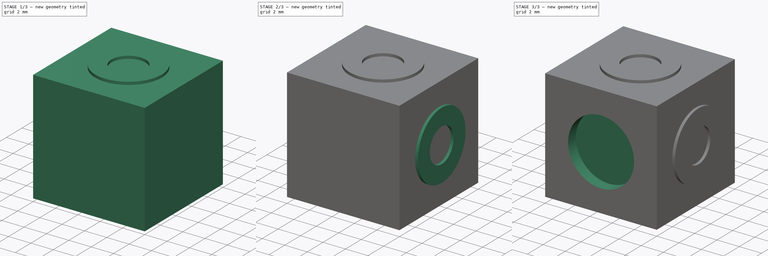
[diagram: build sequence overview — one tinted view per stage of 3, left to right]
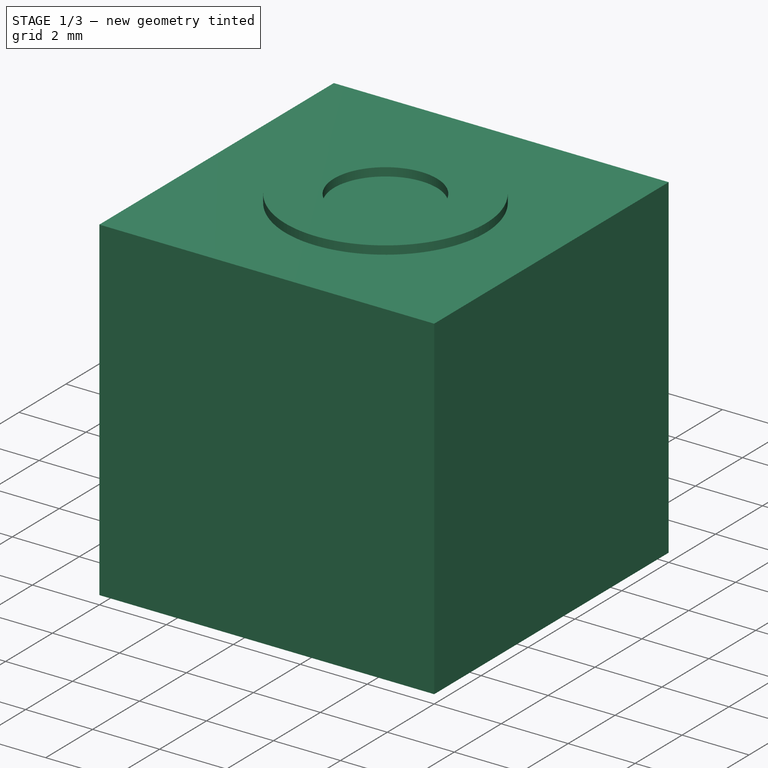
[diagram: stage 1 of 3 — iso view after this stage's code; geometry added in this stage tinted green]
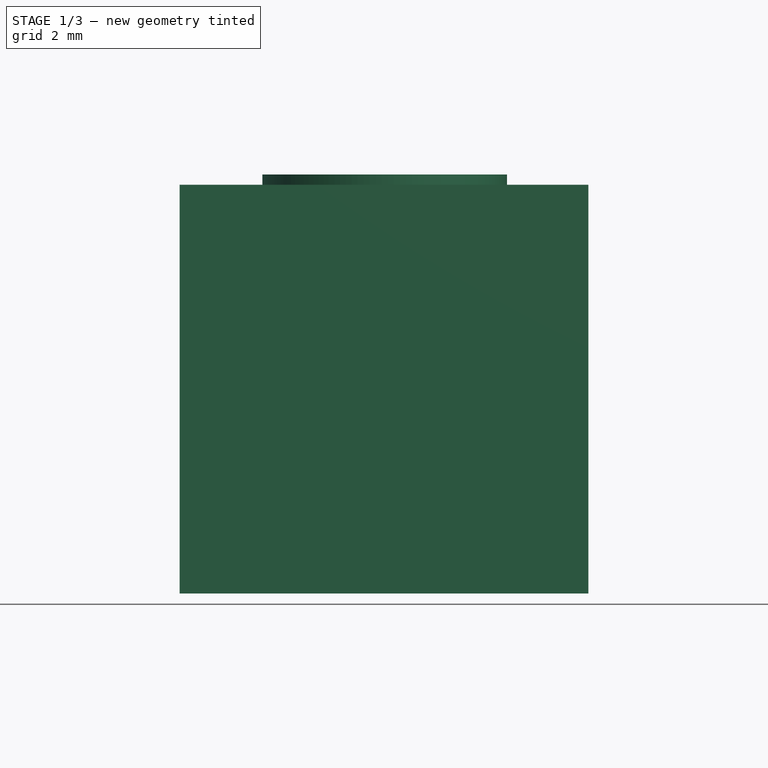
[diagram: stage 1 of 3 — front view after this stage's code; geometry added in this stage tinted green]
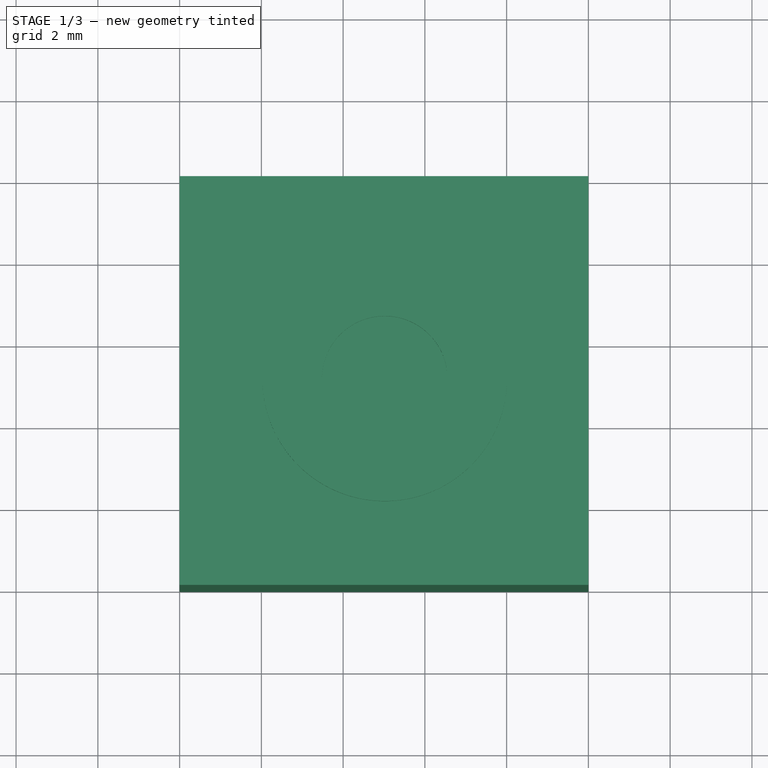
[diagram: stage 1 of 3 — top view after this stage's code; geometry added in this stage tinted green]
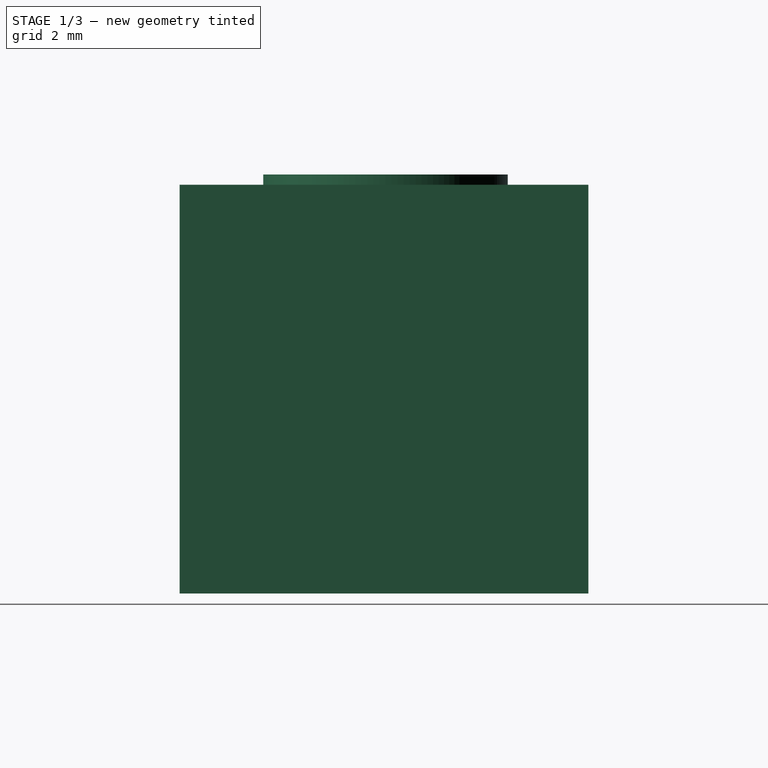
[diagram: stage 1 of 3 — right view after this stage's code; geometry added in this stage tinted green]
FCSTD DOCUMENT  (FreeCAD 0.16R6706 (Git))
Label: totem-base
License: All rights reserved
LicenseURL: http://en.wikipedia.org/wiki/All_rights_reserved
objects: Sketcher::SketchObject×5, PartDesign::Pad×4, Part::Box×1, PartDesign::Pocket×1
note: 16 computed .brp shape members not serialized (recipe doc carries the construction recipe); baked Part::Feature solids carry a one-line shape summary decoded from their .brp

FEATURE [Part::Box] Box  label="Cube"
  Height = 10
  Length = 10
  Width = 10
FEATURE [Sketcher::SketchObject] Sketch
  Placement = pos=(0,0,10) rot=(0,0,1;0rad)
  Support = -> Box [Face6]
  sketch-geometry (2):
    g0: Circle CenterX=5.01728 CenterY=5.03761 CenterZ=0 NormalX=0 NormalY=0 NormalZ=1 Radius=2.99124
    g1: Circle CenterX=5.01728 CenterY=5.03761 CenterZ=0 NormalX=0 NormalY=0 NormalZ=1 Radius=1.53704
FEATURE [PartDesign::Pad] Pad
  Length = 0.25
  Length2 = 100
  Sketch = -> Sketch
  Type = 0
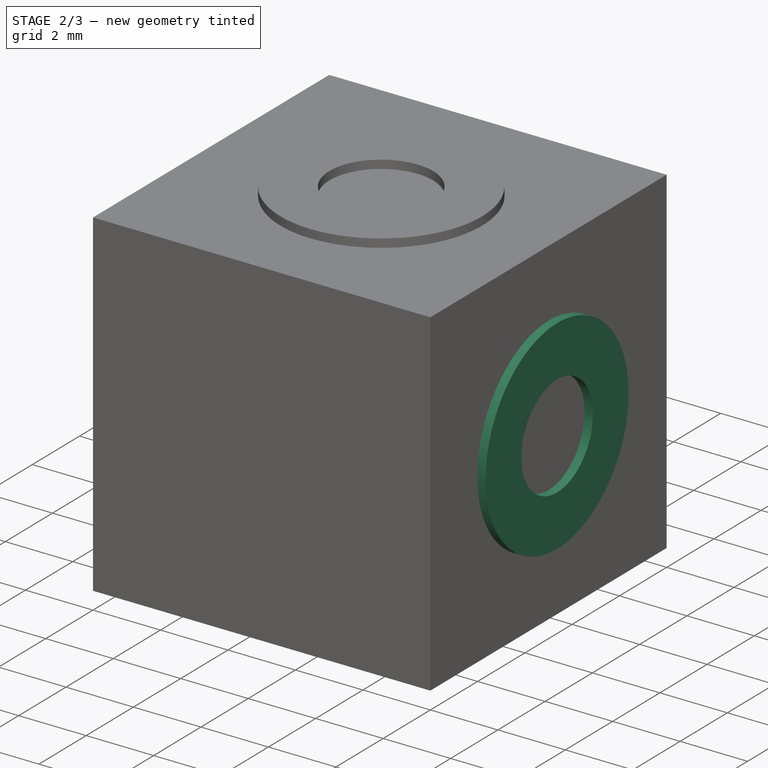
[diagram: stage 2 of 3 — iso view after this stage's code; geometry added in this stage tinted green]
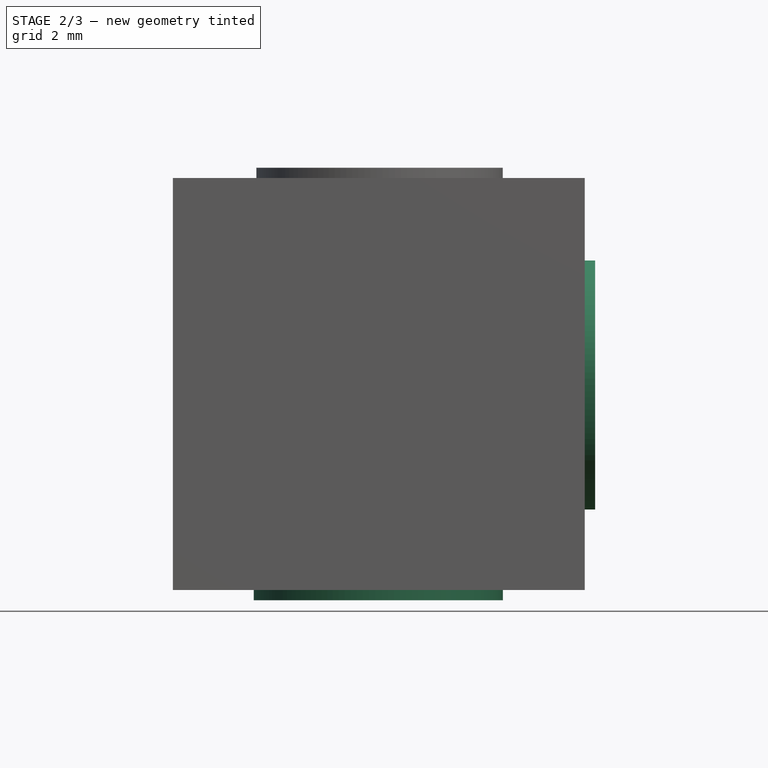
[diagram: stage 2 of 3 — front view after this stage's code; geometry added in this stage tinted green]
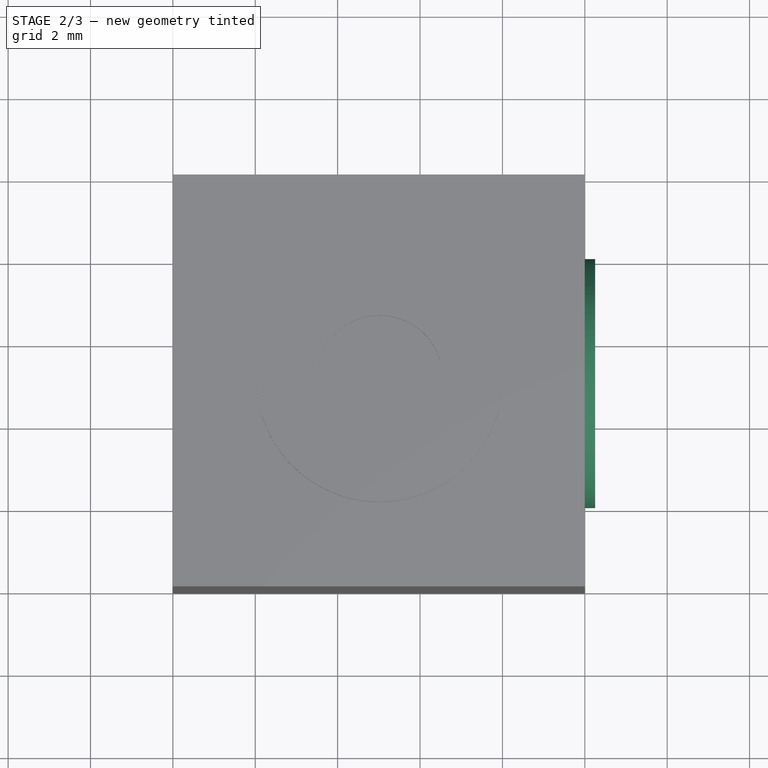
[diagram: stage 2 of 3 — top view after this stage's code; geometry added in this stage tinted green]
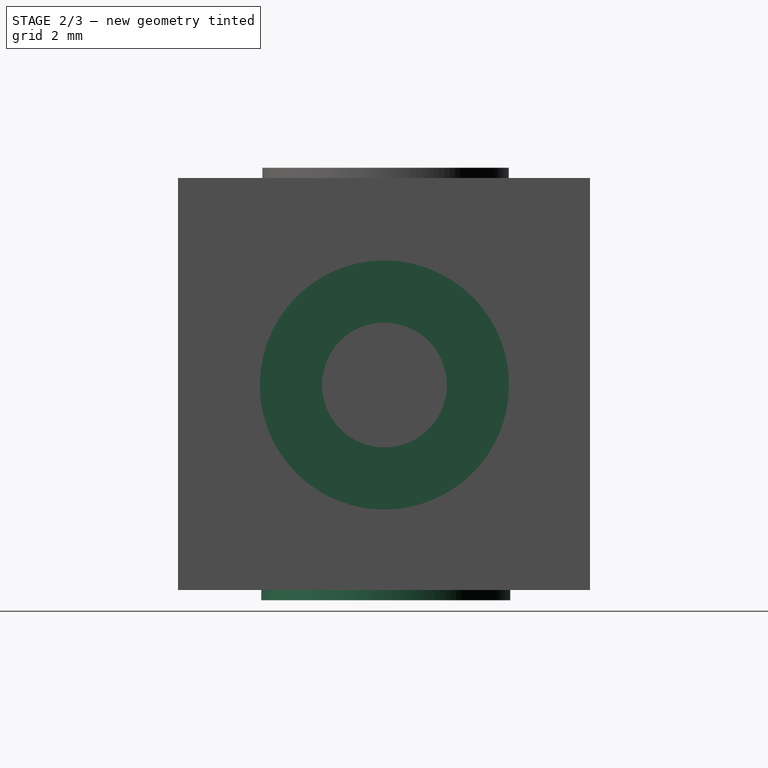
[diagram: stage 2 of 3 — right view after this stage's code; geometry added in this stage tinted green]
FEATURE [Sketcher::SketchObject] Sketch001
  Placement = pos=(0,0,0) rot=(1,0,0;3.14159rad)
  Support = -> Pad [Face5]
  sketch-geometry (2):
    g0: Circle CenterX=4.98752 CenterY=-5.04268 CenterZ=0 NormalX=0 NormalY=0 NormalZ=1 Radius=3.02428
    g1: Circle CenterX=4.98752 CenterY=-5.04268 CenterZ=0 NormalX=0 NormalY=0 NormalZ=1 Radius=1.51921
  constraints (1):
    c: Coincident(g1,g0)
FEATURE [PartDesign::Pad] Pad001
  Length = 0.25
  Length2 = 100
  Sketch = -> Sketch001
  Type = 0
FEATURE [Sketcher::SketchObject] Sketch002
  Placement = pos=(10,0,0) rot=(0.57735,0.57735,0.57735;2.0944rad)
  Support = -> Pad001 [Face6]
  sketch-geometry (2):
    g0: Circle CenterX=5.01027 CenterY=4.97584 CenterZ=0 NormalX=0 NormalY=0 NormalZ=1 Radius=3.02333
    g1: Circle CenterX=5.01027 CenterY=4.97584 CenterZ=0 NormalX=0 NormalY=0 NormalZ=1 Radius=1.51355
  constraints (1):
    c: Coincident(g1,g0)
FEATURE [PartDesign::Pad] Pad002
  Length = 0.25
  Length2 = 100
  Sketch = -> Sketch002
  Type = 0
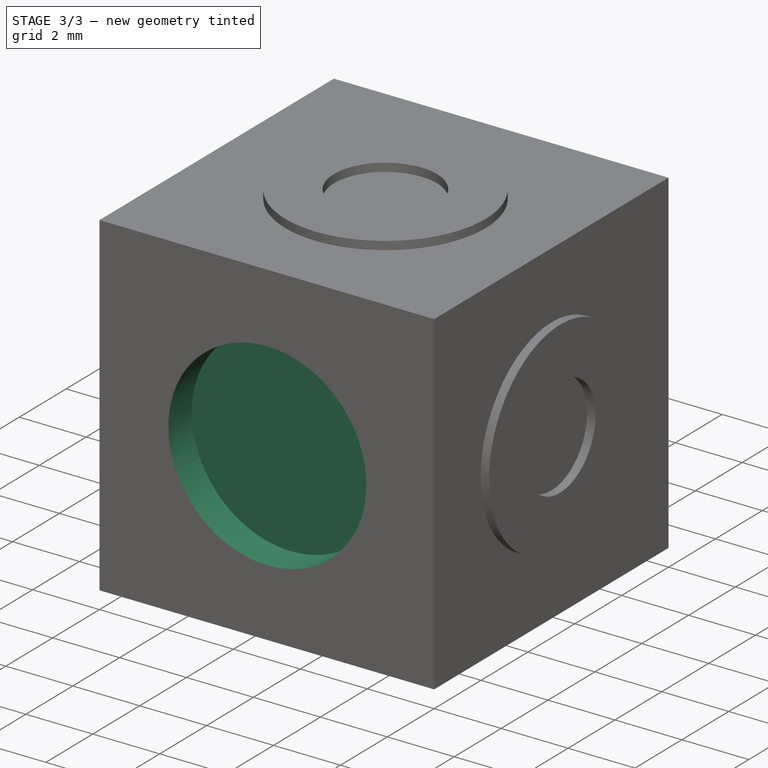
[diagram: stage 3 of 3 — iso view after this stage's code; geometry added in this stage tinted green]
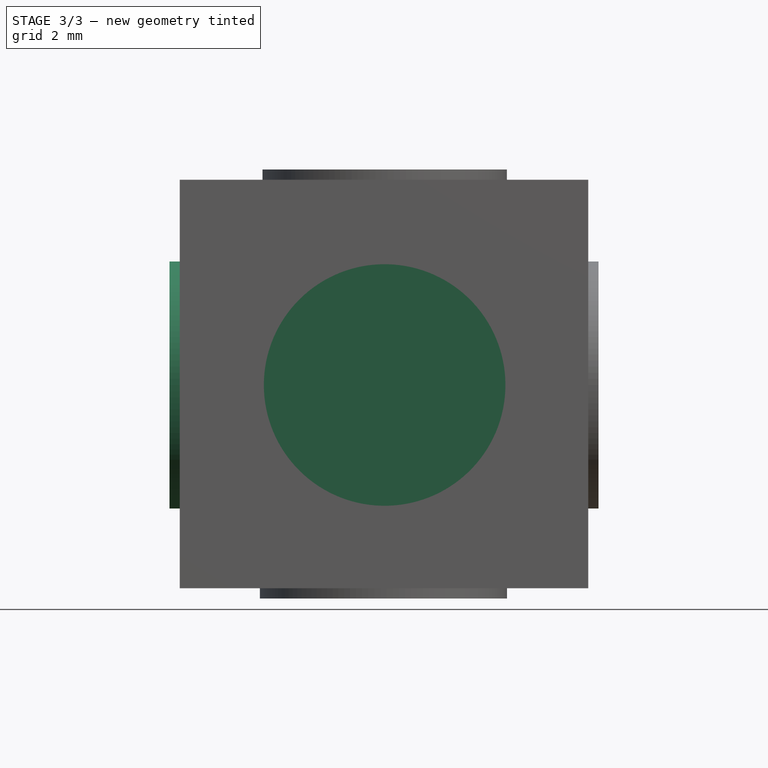
[diagram: stage 3 of 3 — front view after this stage's code; geometry added in this stage tinted green]
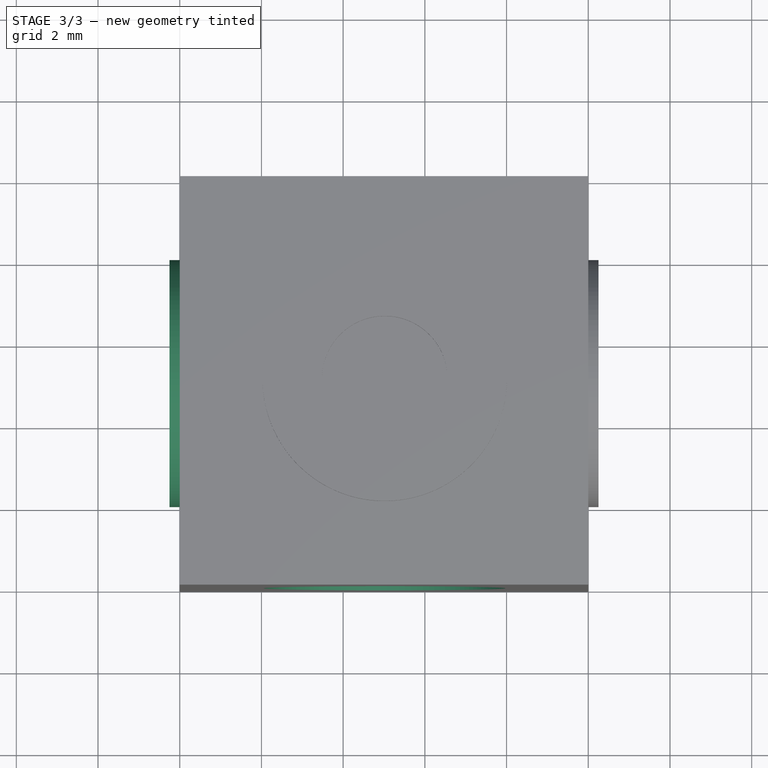
[diagram: stage 3 of 3 — top view after this stage's code; geometry added in this stage tinted green]
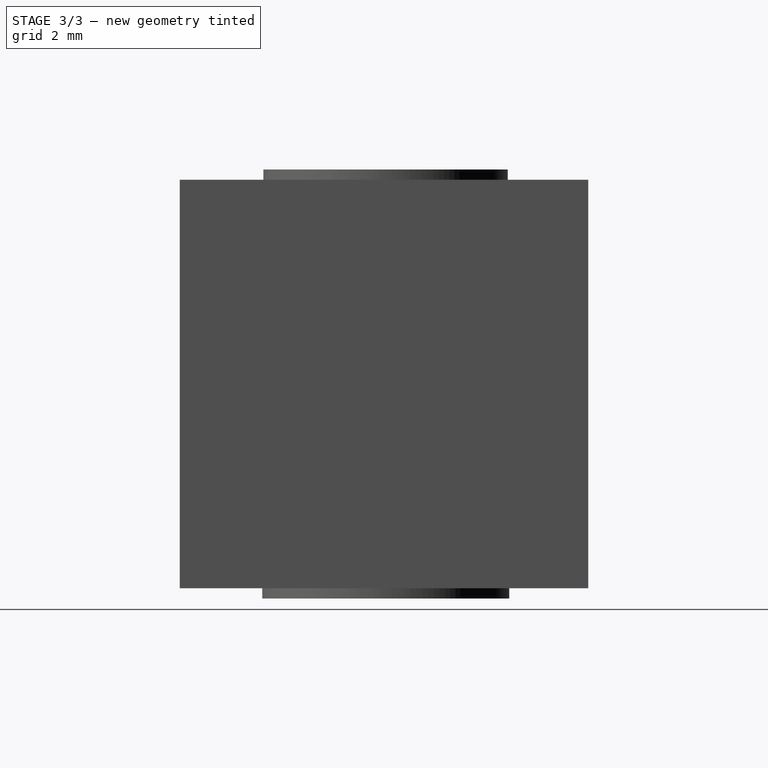
[diagram: stage 3 of 3 — right view after this stage's code; geometry added in this stage tinted green]
FEATURE [Sketcher::SketchObject] Sketch003
  Placement = pos=(0,0,0) rot=(0.57735,-0.57735,-0.57735;2.0944rad)
  Support = -> Pad002 [Face1]
  sketch-geometry (2):
    g0: Circle CenterX=-5.01027 CenterY=4.97584 CenterZ=0 NormalX=0 NormalY=0 NormalZ=1 Radius=3.02333
    g1: Circle CenterX=-5.01027 CenterY=4.97584 CenterZ=0 NormalX=0 NormalY=0 NormalZ=1 Radius=1.51355
  constraints (1):
    c: Coincident(g1,g0)
FEATURE [PartDesign::Pad] Pad003
  Length = 0.25
  Length2 = 100
  Sketch = -> Sketch003
  Type = 0
FEATURE [Sketcher::SketchObject] Sketch004
  Placement = pos=(0,0,0) rot=(1,0,0;1.5708rad)
  Support = -> Pad003 [Face1]
  sketch-geometry (1):
    g0: Circle CenterX=5.01546 CenterY=4.97584 CenterZ=0 NormalX=0 NormalY=0 NormalZ=1 Radius=2.95646
FEATURE [PartDesign::Pocket] Pocket
  Length = 1
  Sketch = -> Sketch004
  Type = 0
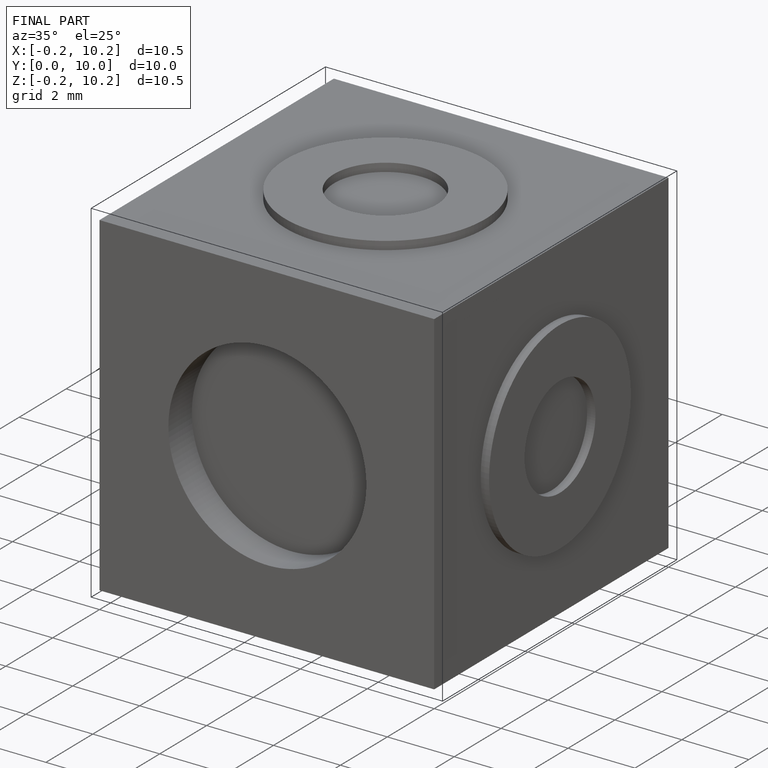
[diagram: finished part — iso view with bounding-box wireframe]
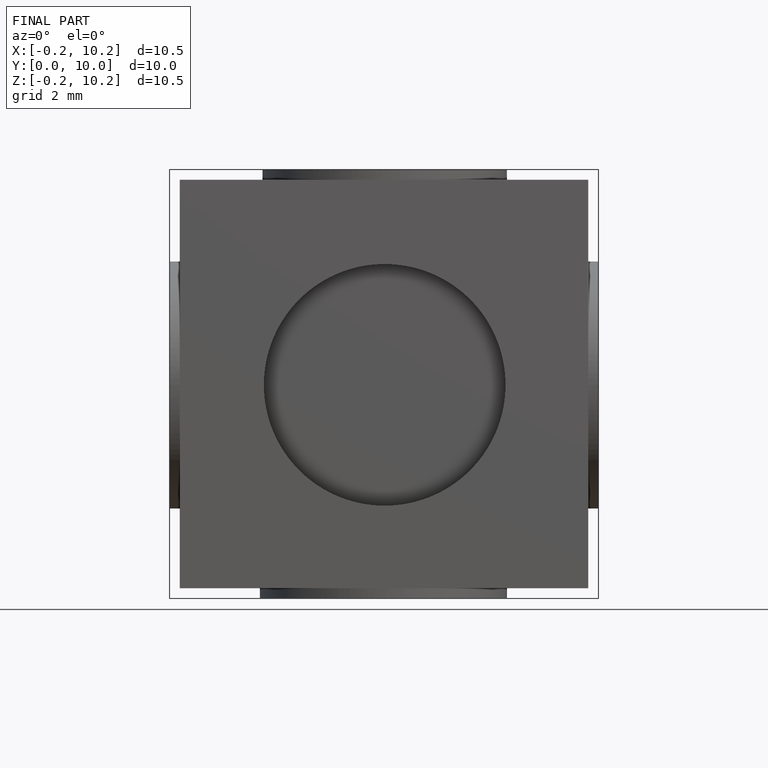
[diagram: finished part — front view with bounding-box wireframe]
